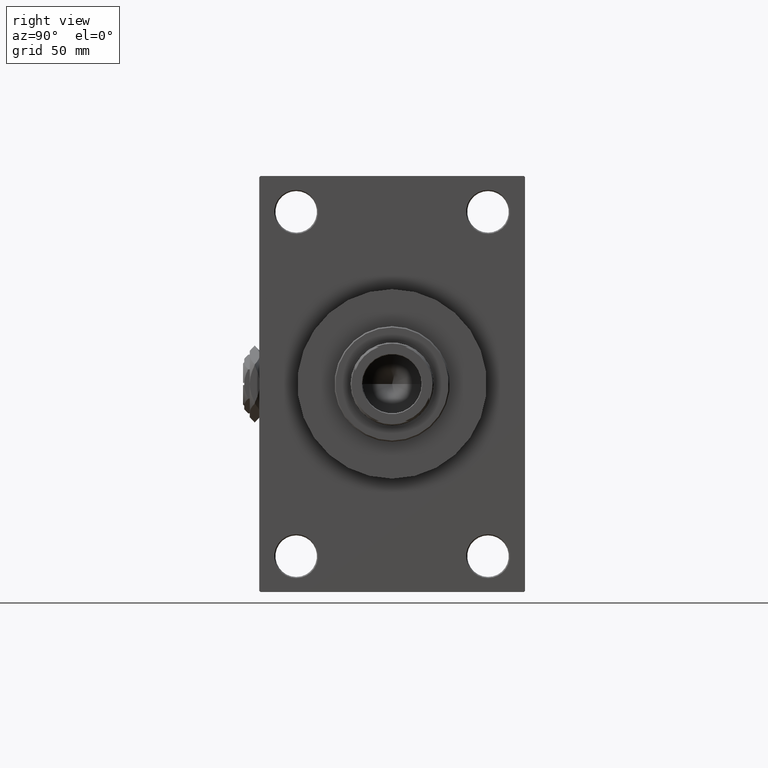
[diagram: clean part render]
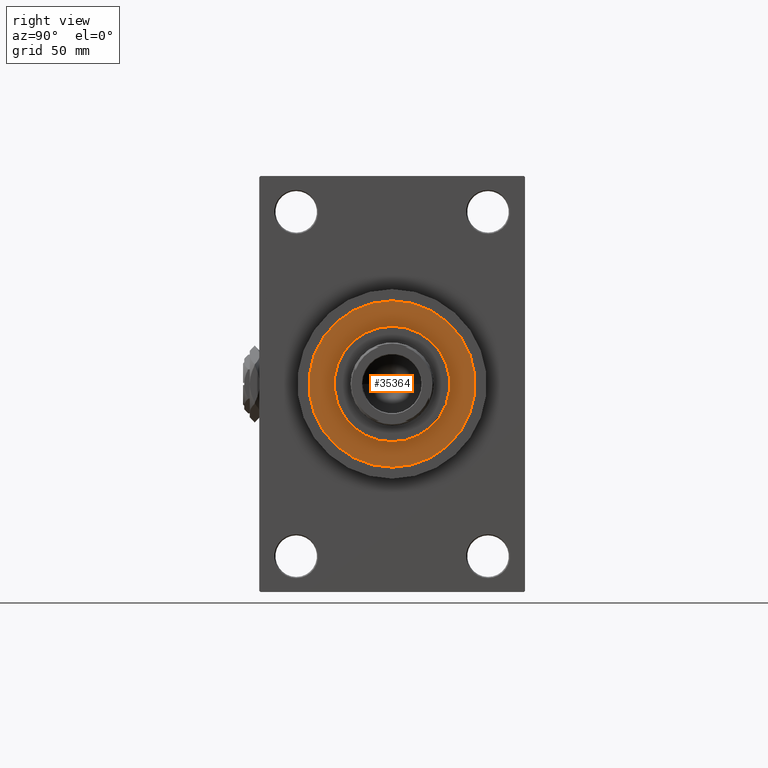
[diagram: same view with one face highlighted and labeled with its STEP entity id]
A machine part, right view. The second image highlights one B-rep face of the part: STEP entity #35364.
In plain terms, the highlighted planar face has unit normal (1, -0, -0).
Its self-contained STEP definition (entity closure, byte-faithful):
#2945 = VERTEX_POINT ( 'NONE', #18272 ) ;
#3238 = CARTESIAN_POINT ( 'NONE',  ( 0.000000000000000000, 0.000000000000000000, 43.25999999999999801 ) ) ;
#3742 = EDGE_LOOP ( 'NONE', ( #27515, #8075 ) ) ;
#6027 = FACE_BOUND ( 'NONE', #23544, .T. ) ;
#7830 = CARTESIAN_POINT ( 'NONE',  ( 36.00000000000000000, 4.408728476930470856E-15, 43.25999999999999801 ) ) ;
#8075 = ORIENTED_EDGE ( 'NONE', *, *, #21325, .T. ) ;
#8438 = ORIENTED_EDGE ( 'NONE', *, *, #20720, .F. ) ;
#9772 = CARTESIAN_POINT ( 'NONE',  ( 0.000000000000000000, 0.000000000000000000, 43.25999999999999801 ) ) ;
#10312 = DIRECTION ( 'NONE',  ( 0.000000000000000000, 0.000000000000000000, 1.000000000000000000 ) ) ;
#12540 = CARTESIAN_POINT ( 'NONE',  ( 25.00000000000000000, 3.061616997868383043E-15, 43.25999999999999801 ) ) ;
#13586 = FACE_OUTER_BOUND ( 'NONE', #3742, .T. ) ;
#14093 = EDGE_CURVE ( 'NONE', #42285, #2945, #14434, .T. ) ;
#14434 = CIRCLE ( 'NONE', #18451, 25.00000000000000000 ) ;
#14575 = CIRCLE ( 'NONE', #38683, 25.00000000000000000 ) ;
#18272 = CARTESIAN_POINT ( 'NONE',  ( -25.00000000000000000, 0.000000000000000000, 43.25999999999999801 ) ) ;
#18451 = AXIS2_PLACEMENT_3D ( 'NONE', #3238, #33207, #18606 ) ;
#18606 = DIRECTION ( 'NONE',  ( 1.000000000000000000, 0.000000000000000000, 0.000000000000000000 ) ) ;
#19346 = CARTESIAN_POINT ( 'NONE',  ( 0.000000000000000000, 0.000000000000000000, 43.25999999999999801 ) ) ;
#20400 = DIRECTION ( 'NONE',  ( 1.000000000000000000, 0.000000000000000000, 0.000000000000000000 ) ) ;
#20720 = EDGE_CURVE ( 'NONE', #2945, #42285, #14575, .T. ) ;
#21325 = EDGE_CURVE ( 'NONE', #44545, #32880, #24182, .T. ) ;
#22148 = PLANE ( 'NONE',  #49512 ) ;
#22387 = AXIS2_PLACEMENT_3D ( 'NONE', #9772, #48261, #45248 ) ;
#23544 = EDGE_LOOP ( 'NONE', ( #8438, #44158 ) ) ;
#24182 = CIRCLE ( 'NONE', #39463, 36.00000000000000000 ) ;
#27515 = ORIENTED_EDGE ( 'NONE', *, *, #47752, .T. ) ;
#30202 = DIRECTION ( 'NONE',  ( 0.000000000000000000, 0.000000000000000000, 1.000000000000000000 ) ) ;
#32880 = VERTEX_POINT ( 'NONE', #43091 ) ;
#33207 = DIRECTION ( 'NONE',  ( 0.000000000000000000, 0.000000000000000000, 1.000000000000000000 ) ) ;
#33219 = CARTESIAN_POINT ( 'NONE',  ( 0.000000000000000000, 0.000000000000000000, 43.25999999999999801 ) ) ;
#35280 = CARTESIAN_POINT ( 'NONE',  ( 0.000000000000000000, 0.000000000000000000, 43.25999999999999801 ) ) ;
#35364 = ADVANCED_FACE ( 'NONE', ( #6027, #13586 ), #22148, .T. ) ;
#37756 = DIRECTION ( 'NONE',  ( 1.000000000000000000, 0.000000000000000000, 0.000000000000000000 ) ) ;
#38683 = AXIS2_PLACEMENT_3D ( 'NONE', #19346, #30202, #37756 ) ;
#39298 = DIRECTION ( 'NONE',  ( 0.000000000000000000, 0.000000000000000000, 1.000000000000000000 ) ) ;
#39463 = AXIS2_PLACEMENT_3D ( 'NONE', #35280, #39298, #20400 ) ;
#42285 = VERTEX_POINT ( 'NONE', #12540 ) ;
#43091 = CARTESIAN_POINT ( 'NONE',  ( -36.00000000000000000, 0.000000000000000000, 43.25999999999999801 ) ) ;
#44056 = CIRCLE ( 'NONE', #22387, 36.00000000000000000 ) ;
#44158 = ORIENTED_EDGE ( 'NONE', *, *, #14093, .F. ) ;
#44521 = DIRECTION ( 'NONE',  ( 1.000000000000000000, 0.000000000000000000, -0.000000000000000000 ) ) ;
#44545 = VERTEX_POINT ( 'NONE', #7830 ) ;
#45248 = DIRECTION ( 'NONE',  ( 1.000000000000000000, 0.000000000000000000, 0.000000000000000000 ) ) ;
#47752 = EDGE_CURVE ( 'NONE', #32880, #44545, #44056, .T. ) ;
#48261 = DIRECTION ( 'NONE',  ( 0.000000000000000000, 0.000000000000000000, 1.000000000000000000 ) ) ;
#49512 = AXIS2_PLACEMENT_3D ( 'NONE', #33219, #10312, #44521 ) ;